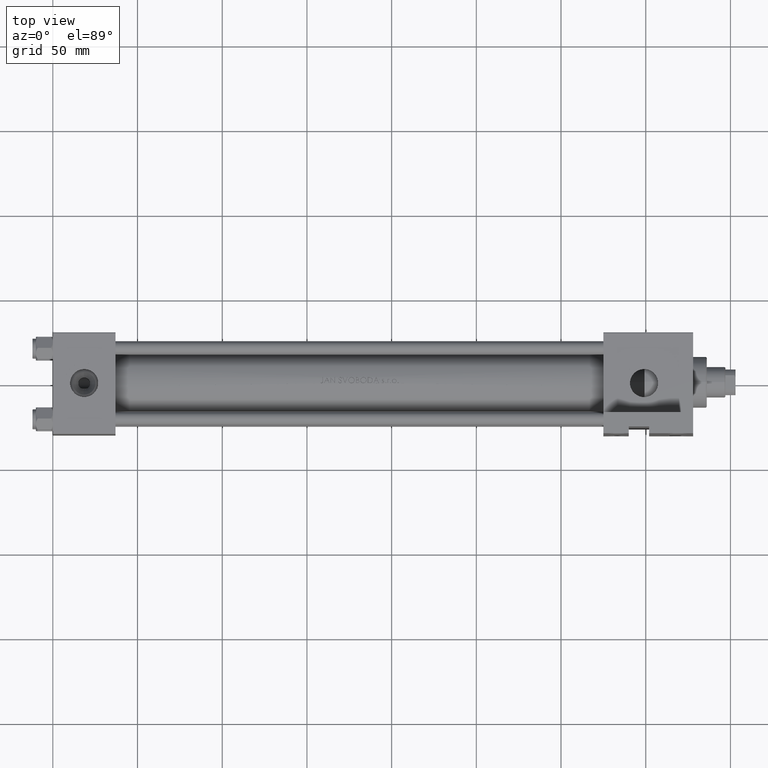
[diagram: clean part render]
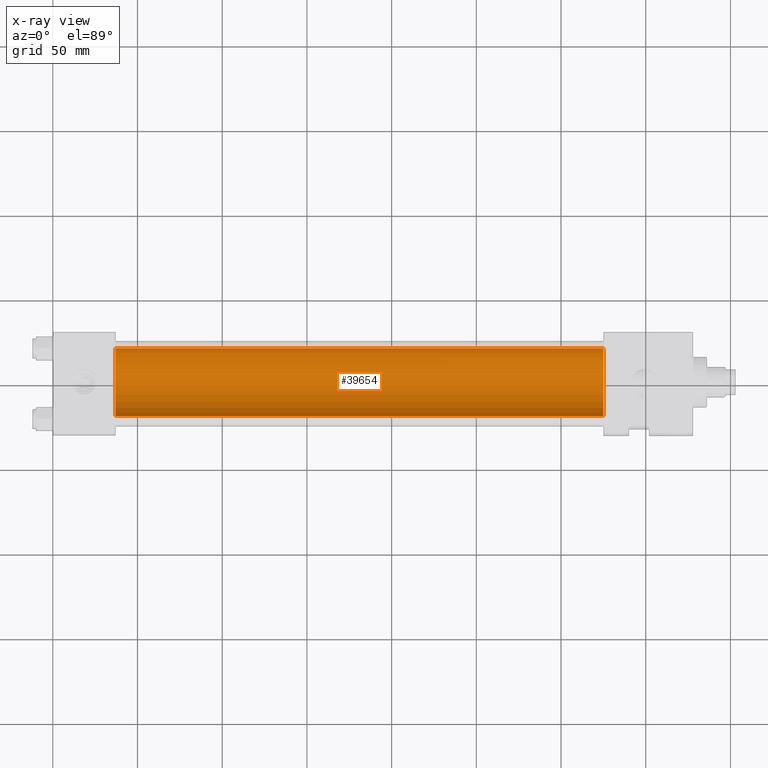
[diagram: x-ray — body ghosted, one internal face saturated and labeled with its STEP entity id]
A machine part, top view, then the same camera in x-ray: the body is ghosted and one INTERNAL B-rep face — a face not visible from any outside direction — is saturated and labeled: STEP entity #39654.
In plain terms, the highlighted cylindrical surface (edge-blend (fillet) strip) has radius 20 mm, axis along (-1, -0, 0).
Its self-contained STEP definition (entity closure, byte-faithful):
#2431 = ORIENTED_EDGE ( 'NONE', *, *, #41464, .F. ) ;
#5301 = DIRECTION ( 'NONE',  ( -1.000000000000000000, -0.000000000000000000, -0.000000000000000000 ) ) ;
#7390 = CARTESIAN_POINT ( 'NONE',  ( 37.00000000000000000, -1.224646799147354686E-16, 1.000000000000000888 ) ) ;
#7434 = VECTOR ( 'NONE', #5301, 1000.000000000000000 ) ;
#8641 = EDGE_CURVE ( 'NONE', #18455, #34685, #33329, .T. ) ;
#9237 = CARTESIAN_POINT ( 'NONE',  ( 324.9999999999999432, -1.224646799147354686E-16, 21.00000000000000000 ) ) ;
#9240 = DIRECTION ( 'NONE',  ( 0.000000000000000000, 0.000000000000000000, 1.000000000000000000 ) ) ;
#12070 = CARTESIAN_POINT ( 'NONE',  ( 324.9999999999999432, -1.224646799147354686E-16, 21.00000000000000000 ) ) ;
#12252 = VERTEX_POINT ( 'NONE', #42853 ) ;
#13765 = DIRECTION ( 'NONE',  ( 0.000000000000000000, 0.000000000000000000, -1.000000000000000000 ) ) ;
#15205 = ORIENTED_EDGE ( 'NONE', *, *, #8641, .T. ) ;
#17483 = ORIENTED_EDGE ( 'NONE', *, *, #43827, .F. ) ;
#17600 = EDGE_LOOP ( 'NONE', ( #2431, #15205, #19871, #17483 ) ) ;
#17701 = AXIS2_PLACEMENT_3D ( 'NONE', #7390, #26367, #44614 ) ;
#18455 = VERTEX_POINT ( 'NONE', #23124 ) ;
#19593 = DIRECTION ( 'NONE',  ( -1.000000000000000000, -0.000000000000000000, -0.000000000000000000 ) ) ;
#19871 = ORIENTED_EDGE ( 'NONE', *, *, #47120, .T. ) ;
#22559 = VECTOR ( 'NONE', #26864, 1000.000000000000000 ) ;
#23124 = CARTESIAN_POINT ( 'NONE',  ( 324.9999999999999432, 2.326828918379970970E-15, -19.00000000000000000 ) ) ;
#23226 = CIRCLE ( 'NONE', #17701, 20.00000000000000000 ) ;
#24357 = DIRECTION ( 'NONE',  ( 1.000000000000000000, 0.000000000000000000, 0.000000000000000000 ) ) ;
#26367 = DIRECTION ( 'NONE',  ( 1.000000000000000000, 0.000000000000000000, 0.000000000000000000 ) ) ;
#26864 = DIRECTION ( 'NONE',  ( -1.000000000000000000, -0.000000000000000000, -0.000000000000000000 ) ) ;
#27718 = LINE ( 'NONE', #46448, #7434 ) ;
#28609 = AXIS2_PLACEMENT_3D ( 'NONE', #46936, #19593, #9240 ) ;
#30933 = FACE_OUTER_BOUND ( 'NONE', #17600, .T. ) ;
#32503 = CARTESIAN_POINT ( 'NONE',  ( 324.9999999999999432, -1.224646799147354686E-16, 1.000000000000000888 ) ) ;
#33329 = CIRCLE ( 'NONE', #39596, 20.00000000000000000 ) ;
#34685 = VERTEX_POINT ( 'NONE', #9237 ) ;
#38217 = LINE ( 'NONE', #12070, #22559 ) ;
#39475 = CARTESIAN_POINT ( 'NONE',  ( 37.00000000000000000, -1.224646799147354686E-16, 21.00000000000000000 ) ) ;
#39596 = AXIS2_PLACEMENT_3D ( 'NONE', #32503, #24357, #13765 ) ;
#39654 = ADVANCED_FACE ( 'NONE', ( #30933 ), #42517, .F. ) ;
#41464 = EDGE_CURVE ( 'NONE', #18455, #12252, #27718, .T. ) ;
#42517 = CYLINDRICAL_SURFACE ( 'NONE', #28609, 20.00000000000000000 ) ;
#42853 = CARTESIAN_POINT ( 'NONE',  ( 37.00000000000000000, 2.326828918379970970E-15, -19.00000000000000000 ) ) ;
#43827 = EDGE_CURVE ( 'NONE', #12252, #47006, #23226, .T. ) ;
#44614 = DIRECTION ( 'NONE',  ( 0.000000000000000000, 0.000000000000000000, -1.000000000000000000 ) ) ;
#46448 = CARTESIAN_POINT ( 'NONE',  ( 324.9999999999999432, 2.326828918379970970E-15, -19.00000000000000000 ) ) ;
#46936 = CARTESIAN_POINT ( 'NONE',  ( 324.9999999999999432, -1.224646799147354686E-16, 1.000000000000000888 ) ) ;
#47006 = VERTEX_POINT ( 'NONE', #39475 ) ;
#47120 = EDGE_CURVE ( 'NONE', #34685, #47006, #38217, .T. ) ;